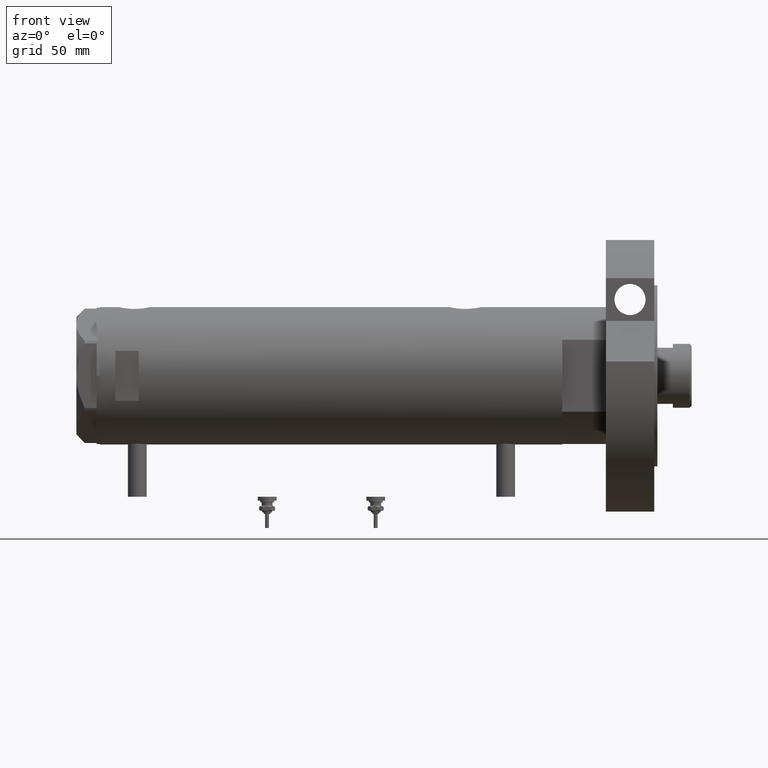
[diagram: clean part render]
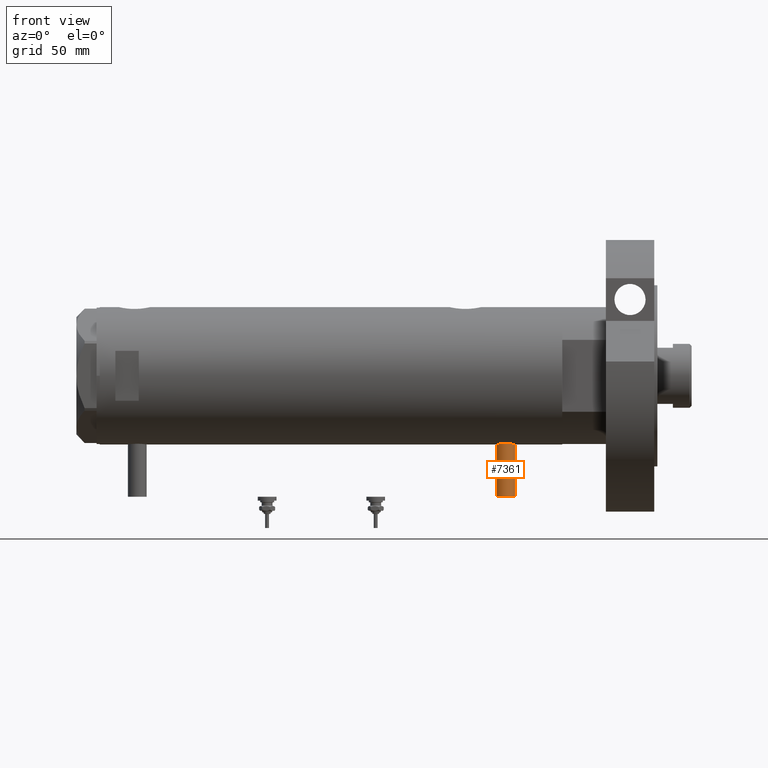
[diagram: same view with one face highlighted and labeled with its STEP entity id]
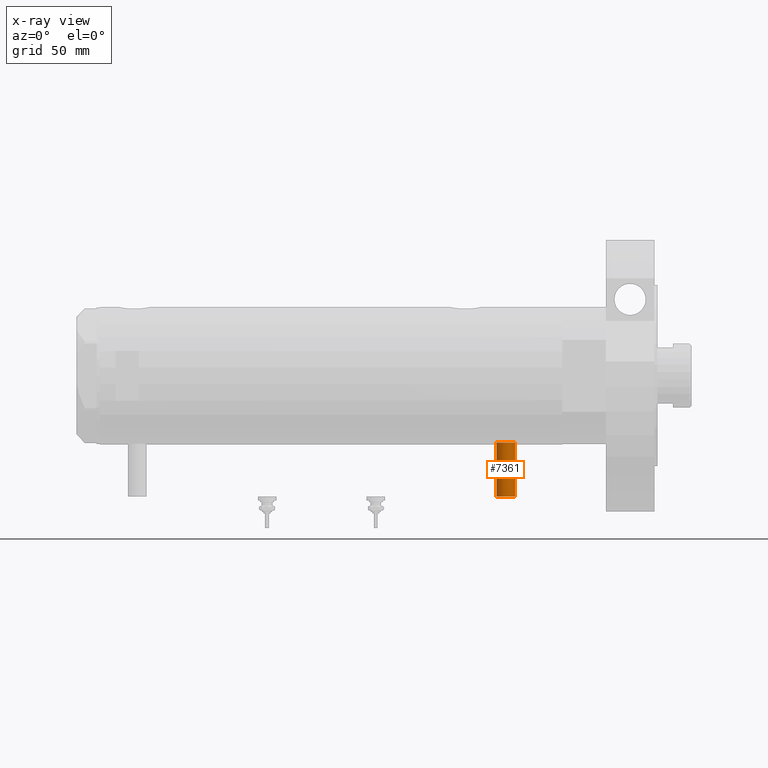
[diagram: x-ray of the same camera — body ghosted, the highlighted face saturated]
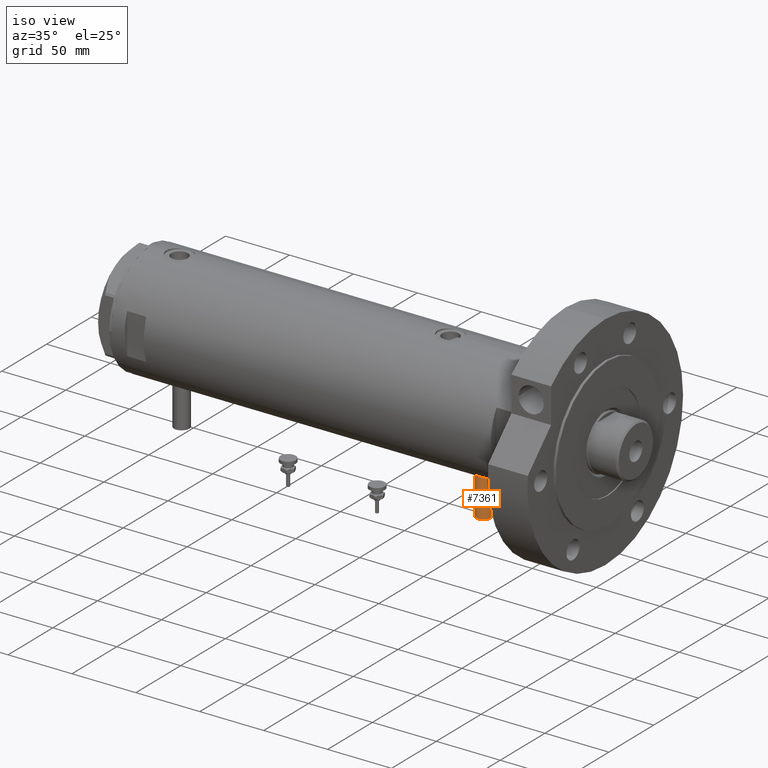
[diagram: same view with one face highlighted and labeled with its STEP entity id]
A machine part, front view. The second image highlights one B-rep face of the part: STEP entity #7361.
The next image is the same camera in x-ray: the body ghosted, the highlighted face saturated — about 0% of this face is hidden behind the body in this view.
A second angle (iso view) of the same face is appended — the face is thin or edge-on in the first view.
In plain terms, the highlighted cylindrical surface (edge-blend (fillet) strip) has radius 6 mm, axis along (0, 0, 1).
Its self-contained STEP definition (entity closure, byte-faithful):
#560 = DIRECTION ( 'NONE',  ( 1.000000000000000000, -0.000000000000000000, -0.000000000000000000 ) ) ;
#587 = AXIS2_PLACEMENT_3D ( 'NONE', #962, #1572, #4910 ) ;
#758 = ORIENTED_EDGE ( 'NONE', *, *, #2787, .T. ) ;
#962 = CARTESIAN_POINT ( 'NONE',  ( -77.50000000000000000, 0.000000000000000000, -111.9000000000000057 ) ) ;
#1102 = CARTESIAN_POINT ( 'NONE',  ( -77.50000000000000000, 7.347880794884119736E-16, -105.8999999999999915 ) ) ;
#1291 = ORIENTED_EDGE ( 'NONE', *, *, #2203, .F. ) ;
#1398 = DIRECTION ( 'NONE',  ( 1.000000000000000000, -0.000000000000000000, -0.000000000000000000 ) ) ;
#1480 = CARTESIAN_POINT ( 'NONE',  ( -77.50000000000000000, 0.000000000000000000, -111.9000000000000057 ) ) ;
#1509 = CIRCLE ( 'NONE', #6393, 6.000000000000005329 ) ;
#1521 = DIRECTION ( 'NONE',  ( -1.000000000000000000, 0.000000000000000000, 0.000000000000000000 ) ) ;
#1572 = DIRECTION ( 'NONE',  ( 1.000000000000000000, -0.000000000000000000, -0.000000000000000000 ) ) ;
#1725 = DIRECTION ( 'NONE',  ( -1.000000000000000000, 0.000000000000000000, 0.000000000000000000 ) ) ;
#1788 = CARTESIAN_POINT ( 'NONE',  ( -42.79999999999999716, 0.000000000000000000, -117.9000000000000057 ) ) ;
#1862 = VECTOR ( 'NONE', #560, 1000.000000000000000 ) ;
#1897 = VERTEX_POINT ( 'NONE', #1788 ) ;
#2005 = CARTESIAN_POINT ( 'NONE',  ( -77.50000000000000000, 7.347880794884122694E-16, -105.8999999999999915 ) ) ;
#2203 = EDGE_CURVE ( 'NONE', #4758, #4788, #1509, .T. ) ;
#2235 = AXIS2_PLACEMENT_3D ( 'NONE', #6944, #1725, #5267 ) ;
#2327 = CARTESIAN_POINT ( 'NONE',  ( -77.50000000000000000, 0.000000000000000000, -117.9000000000000057 ) ) ;
#2622 = DIRECTION ( 'NONE',  ( 0.000000000000000000, 0.000000000000000000, 1.000000000000000000 ) ) ;
#2787 = EDGE_CURVE ( 'NONE', #4758, #1897, #3442, .T. ) ;
#2808 = VERTEX_POINT ( 'NONE', #2870 ) ;
#2870 = CARTESIAN_POINT ( 'NONE',  ( -42.79999999999999716, 7.347880794884119736E-16, -105.8999999999999915 ) ) ;
#2960 = CIRCLE ( 'NONE', #2235, 6.000000000000005329 ) ;
#3113 = VECTOR ( 'NONE', #1398, 1000.000000000000000 ) ;
#3442 = LINE ( 'NONE', #2327, #1862 ) ;
#3762 = LINE ( 'NONE', #2005, #3113 ) ;
#3929 = EDGE_CURVE ( 'NONE', #1897, #2808, #2960, .T. ) ;
#4006 = CARTESIAN_POINT ( 'NONE',  ( -77.50000000000000000, 0.000000000000000000, -117.9000000000000057 ) ) ;
#4758 = VERTEX_POINT ( 'NONE', #4006 ) ;
#4788 = VERTEX_POINT ( 'NONE', #1102 ) ;
#4910 = DIRECTION ( 'NONE',  ( 0.000000000000000000, 0.000000000000000000, -1.000000000000000000 ) ) ;
#5267 = DIRECTION ( 'NONE',  ( 0.000000000000000000, 0.000000000000000000, 1.000000000000000000 ) ) ;
#5589 = FACE_OUTER_BOUND ( 'NONE', #5877, .T. ) ;
#5877 = EDGE_LOOP ( 'NONE', ( #5925, #1291, #758, #6986 ) ) ;
#5925 = ORIENTED_EDGE ( 'NONE', *, *, #6474, .F. ) ;
#6393 = AXIS2_PLACEMENT_3D ( 'NONE', #1480, #1521, #2622 ) ;
#6474 = EDGE_CURVE ( 'NONE', #4788, #2808, #3762, .T. ) ;
#6819 = CYLINDRICAL_SURFACE ( 'NONE', #587, 6.000000000000005329 ) ;
#6944 = CARTESIAN_POINT ( 'NONE',  ( -42.79999999999999716, 0.000000000000000000, -111.9000000000000057 ) ) ;
#6986 = ORIENTED_EDGE ( 'NONE', *, *, #3929, .T. ) ;
#7361 = ADVANCED_FACE ( 'NONE', ( #5589 ), #6819, .T. ) ;